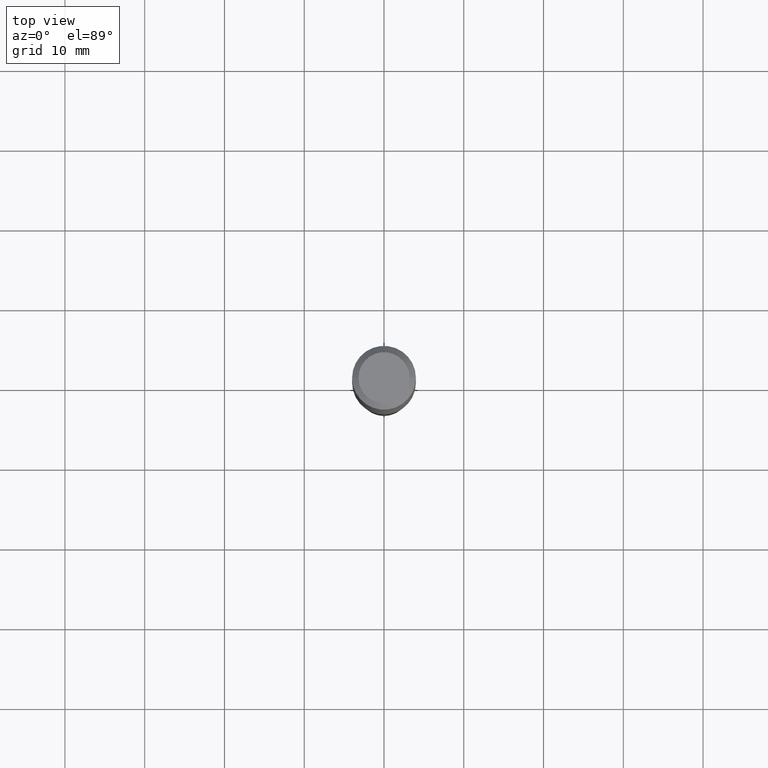
[diagram: clean part render]
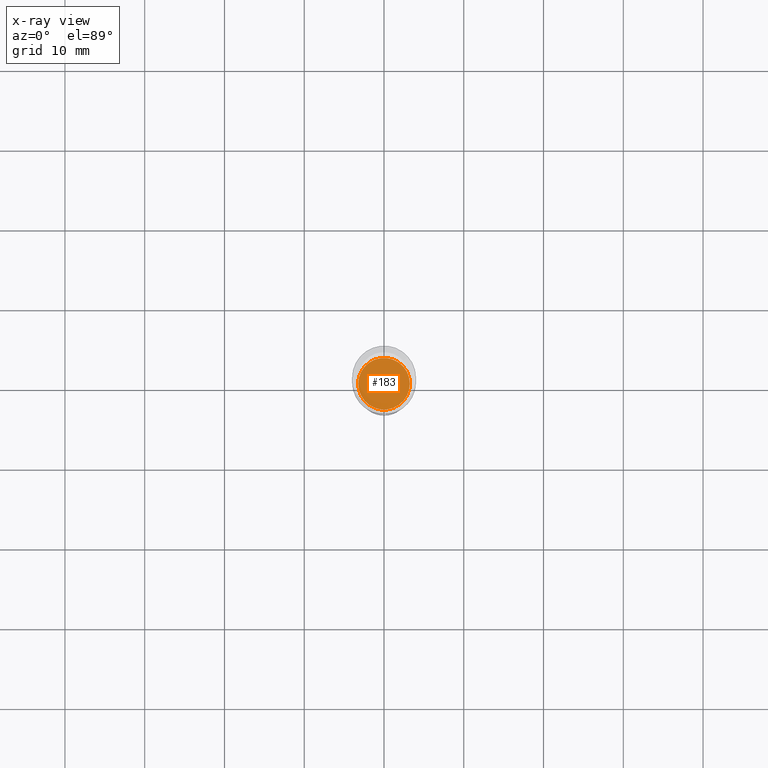
[diagram: x-ray — body ghosted, one internal face saturated and labeled with its STEP entity id]
A machine part, top view, then the same camera in x-ray: the body is ghosted and one INTERNAL B-rep face — a face not visible from any outside direction — is saturated and labeled: STEP entity #183.
In plain terms, the highlighted planar face has unit normal (-0, 0, 1).
Its self-contained STEP definition (entity closure, byte-faithful):
#4 = VERTEX_POINT ( 'NONE', #270 ) ;
#5 = AXIS2_PLACEMENT_3D ( 'NONE', #290, #214, #324 ) ;
#94 = DIRECTION ( 'NONE',  ( 1.000000000000000000, -6.982962677686265922E-15, 4.876176775795935793E-29 ) ) ;
#97 = DIRECTION ( 'NONE',  ( -2.445468806185136597E-29, 3.491481338843145583E-15, 1.000000000000000000 ) ) ;
#130 = AXIS2_PLACEMENT_3D ( 'NONE', #303, #97, #243 ) ;
#152 = EDGE_LOOP ( 'NONE', ( #413, #479 ) ) ;
#163 = EDGE_CURVE ( 'NONE', #406, #4, #436, .T. ) ;
#169 = PLANE ( 'NONE',  #412 ) ;
#180 = CIRCLE ( 'NONE', #5, 0.1274500000000000077 ) ;
#183 = ADVANCED_FACE ( 'NONE', ( #239 ), #169, .F. ) ;
#204 = CARTESIAN_POINT ( 'NONE',  ( 4.284461348436360250E-29, -6.117075305653192263E-15, -1.752000000000000224 ) ) ;
#214 = DIRECTION ( 'NONE',  ( -2.445468806185136597E-29, 3.491481338843145583E-15, 1.000000000000000000 ) ) ;
#239 = FACE_OUTER_BOUND ( 'NONE', #152, .T. ) ;
#243 = DIRECTION ( 'NONE',  ( 1.000000000000000000, -6.982962677686264344E-15, 0.000000000000000000 ) ) ;
#270 = CARTESIAN_POINT ( 'NONE',  ( -0.1274500000000000077, -5.208839361752833715E-15, -1.752000000000000224 ) ) ;
#290 = CARTESIAN_POINT ( 'NONE',  ( 4.284461348436360250E-29, -6.117075305653192263E-15, -1.752000000000000224 ) ) ;
#303 = CARTESIAN_POINT ( 'NONE',  ( 4.284461348436360250E-29, -6.117075305653192263E-15, -1.752000000000000224 ) ) ;
#321 = DIRECTION ( 'NONE',  ( -2.438088387897960049E-29, 3.491481338843145188E-15, 1.000000000000000000 ) ) ;
#324 = DIRECTION ( 'NONE',  ( 1.000000000000000000, -6.982962677686264344E-15, 0.000000000000000000 ) ) ;
#406 = VERTEX_POINT ( 'NONE', #422 ) ;
#407 = EDGE_CURVE ( 'NONE', #4, #406, #180, .T. ) ;
#412 = AXIS2_PLACEMENT_3D ( 'NONE', #204, #321, #94 ) ;
#413 = ORIENTED_EDGE ( 'NONE', *, *, #163, .F. ) ;
#422 = CARTESIAN_POINT ( 'NONE',  ( 0.1274500000000000077, -7.007053898924307126E-15, -1.752000000000000224 ) ) ;
#436 = CIRCLE ( 'NONE', #130, 0.1274500000000000077 ) ;
#479 = ORIENTED_EDGE ( 'NONE', *, *, #407, .F. ) ;